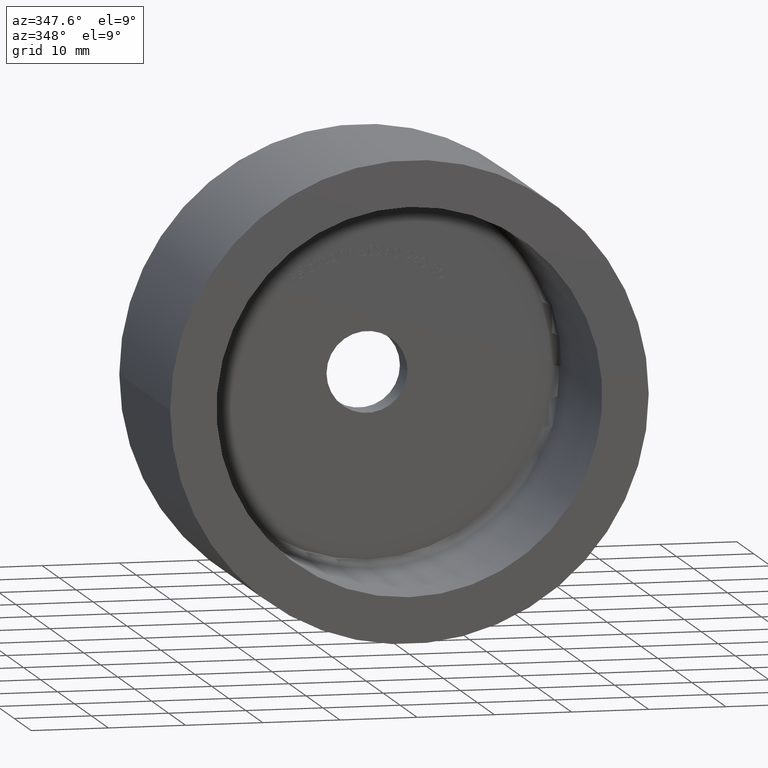
[diagram: clean part render]
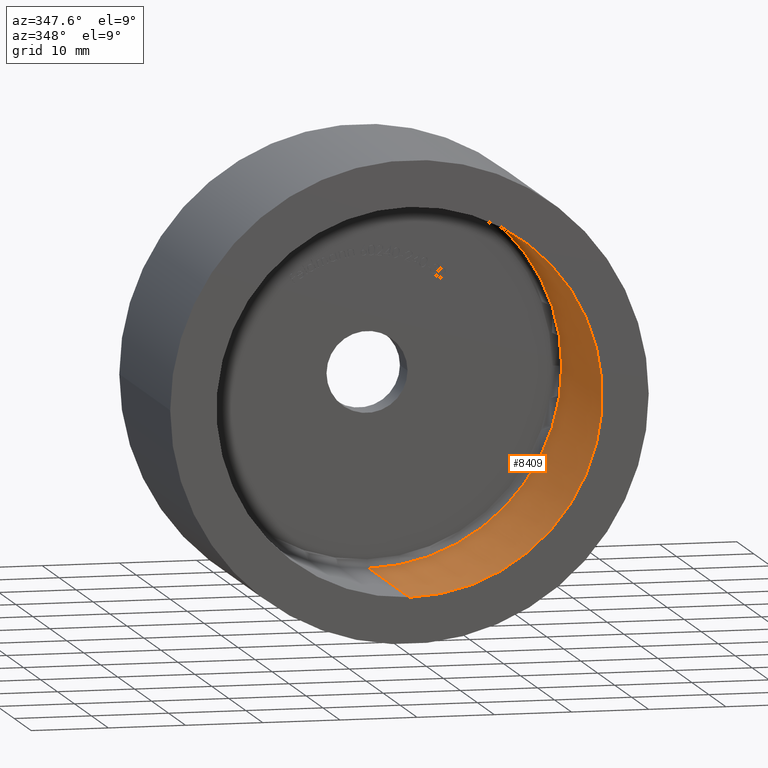
[diagram: same view with one face highlighted and labeled with its STEP entity id]
A machine part, auxiliary view. The second image highlights one B-rep face of the part: STEP entity #8409.
In plain terms, the highlighted cylindrical surface (partial cylindrical patch) has radius 25 mm, axis along (-0, -1, -0).
Its self-contained STEP definition (entity closure, byte-faithful):
#124 = AXIS2_PLACEMENT_3D ( 'NONE', #13454, #1593, #2712 ) ;
#393 = CARTESIAN_POINT ( 'NONE',  ( 0.000000000000000000, 0.000000000000000000, 0.000000000000000000 ) ) ;
#711 = AXIS2_PLACEMENT_3D ( 'NONE', #8021, #2128, #6695 ) ;
#1593 = DIRECTION ( 'NONE',  ( -1.156482317317871725E-16, 1.000000000000000000, -0.000000000000000000 ) ) ;
#1642 = DIRECTION ( 'NONE',  ( 0.000000000000000000, 0.000000000000000000, -1.000000000000000000 ) ) ;
#1673 = CIRCLE ( 'NONE', #124, 25.00000000000000000 ) ;
#1722 = CARTESIAN_POINT ( 'NONE',  ( 3.061616997868383043E-15, 0.000000000000000000, 25.00000000000000000 ) ) ;
#1841 = CIRCLE ( 'NONE', #6849, 25.00000000000000000 ) ;
#2128 = DIRECTION ( 'NONE',  ( -1.156482317317871725E-16, 1.000000000000000000, -0.000000000000000000 ) ) ;
#2352 = VERTEX_POINT ( 'NONE', #1722 ) ;
#2433 = FACE_OUTER_BOUND ( 'NONE', #4635, .T. ) ;
#2637 = CARTESIAN_POINT ( 'NONE',  ( 3.061616997868383043E-15, 100.7106781186547693, 25.00000000000000000 ) ) ;
#2712 = DIRECTION ( 'NONE',  ( -1.000000000000000000, -1.387778780781445676E-16, 0.000000000000000000 ) ) ;
#3136 = VERTEX_POINT ( 'NONE', #10441 ) ;
#3334 = EDGE_CURVE ( 'NONE', #3136, #2352, #13248, .T. ) ;
#3527 = ORIENTED_EDGE ( 'NONE', *, *, #9427, .T. ) ;
#3855 = EDGE_CURVE ( 'NONE', #14322, #9773, #7647, .T. ) ;
#3858 = VERTEX_POINT ( 'NONE', #7976 ) ;
#3990 = ORIENTED_EDGE ( 'NONE', *, *, #3855, .T. ) ;
#4635 = EDGE_LOOP ( 'NONE', ( #5638, #4705, #3990, #6966, #3527 ) ) ;
#4636 = DIRECTION ( 'NONE',  ( 0.000000000000000000, 0.000000000000000000, -1.000000000000000000 ) ) ;
#4705 = ORIENTED_EDGE ( 'NONE', *, *, #8126, .T. ) ;
#4936 = CARTESIAN_POINT ( 'NONE',  ( -4.012354050806742528E-31, 23.99999999999999289, -25.00000000000000000 ) ) ;
#5036 = DIRECTION ( 'NONE',  ( -0.000000000000000000, -1.000000000000000000, -0.000000000000000000 ) ) ;
#5638 = ORIENTED_EDGE ( 'NONE', *, *, #3334, .F. ) ;
#6557 = DIRECTION ( 'NONE',  ( -0.000000000000000000, -1.000000000000000000, -0.000000000000000000 ) ) ;
#6695 = DIRECTION ( 'NONE',  ( -1.000000000000000000, -1.387778780781445676E-16, 0.000000000000000000 ) ) ;
#6849 = AXIS2_PLACEMENT_3D ( 'NONE', #393, #11195, #1642 ) ;
#6966 = ORIENTED_EDGE ( 'NONE', *, *, #7297, .T. ) ;
#7187 = DIRECTION ( 'NONE',  ( -0.000000000000000000, -1.000000000000000000, -0.000000000000000000 ) ) ;
#7297 = EDGE_CURVE ( 'NONE', #9773, #3858, #13223, .T. ) ;
#7647 = CIRCLE ( 'NONE', #711, 25.00000000000000000 ) ;
#7976 = CARTESIAN_POINT ( 'NONE',  ( 0.000000000000000000, 0.000000000000000000, -25.00000000000000000 ) ) ;
#8021 = CARTESIAN_POINT ( 'NONE',  ( 0.000000000000000000, 23.99999999999999289, 0.000000000000000000 ) ) ;
#8028 = VECTOR ( 'NONE', #5036, 1000.000000000000000 ) ;
#8126 = EDGE_CURVE ( 'NONE', #3136, #14322, #1673, .T. ) ;
#8409 = ADVANCED_FACE ( 'NONE', ( #2433 ), #14509, .F. ) ;
#9106 = AXIS2_PLACEMENT_3D ( 'NONE', #10652, #7187, #4636 ) ;
#9131 = VECTOR ( 'NONE', #6557, 1000.000000000000000 ) ;
#9427 = EDGE_CURVE ( 'NONE', #3858, #2352, #1841, .T. ) ;
#9773 = VERTEX_POINT ( 'NONE', #4936 ) ;
#9990 = CARTESIAN_POINT ( 'NONE',  ( 0.000000000000000000, 100.7106781186547693, -25.00000000000000000 ) ) ;
#10441 = CARTESIAN_POINT ( 'NONE',  ( 3.061616997868382648E-15, 23.99999999999999289, 25.00000000000000000 ) ) ;
#10652 = CARTESIAN_POINT ( 'NONE',  ( 0.000000000000000000, 100.7106781186547693, 0.000000000000000000 ) ) ;
#11195 = DIRECTION ( 'NONE',  ( 0.000000000000000000, -1.000000000000000000, 0.000000000000000000 ) ) ;
#13223 = LINE ( 'NONE', #9990, #9131 ) ;
#13248 = LINE ( 'NONE', #2637, #8028 ) ;
#13454 = CARTESIAN_POINT ( 'NONE',  ( 0.000000000000000000, 23.99999999999999289, 0.000000000000000000 ) ) ;
#13914 = CARTESIAN_POINT ( 'NONE',  ( 25.00000000000000000, 23.99999999999999645, 3.061616997868383043E-15 ) ) ;
#14322 = VERTEX_POINT ( 'NONE', #13914 ) ;
#14509 = CYLINDRICAL_SURFACE ( 'NONE', #9106, 25.00000000000000000 ) ;